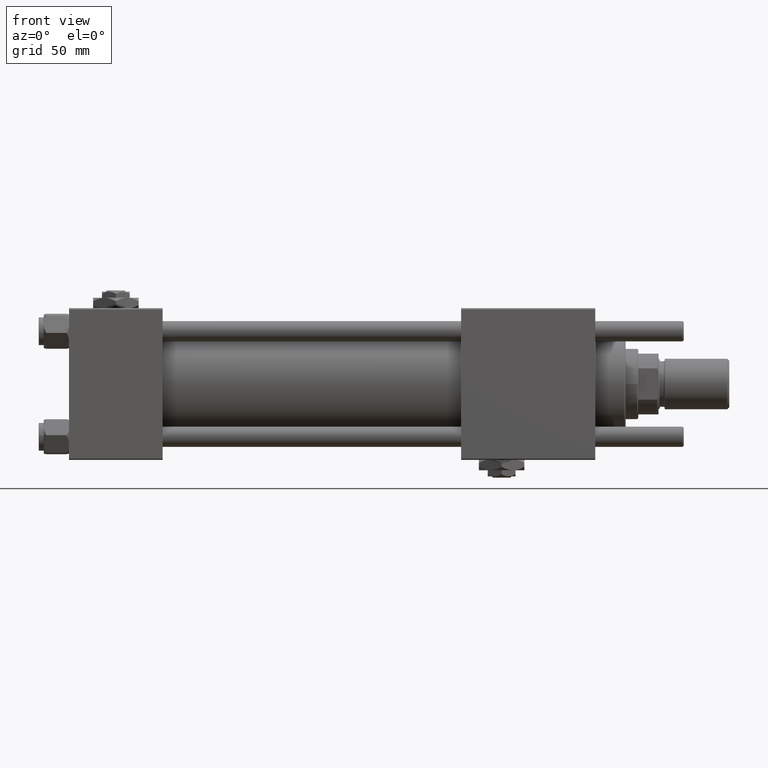
[diagram: clean part render]
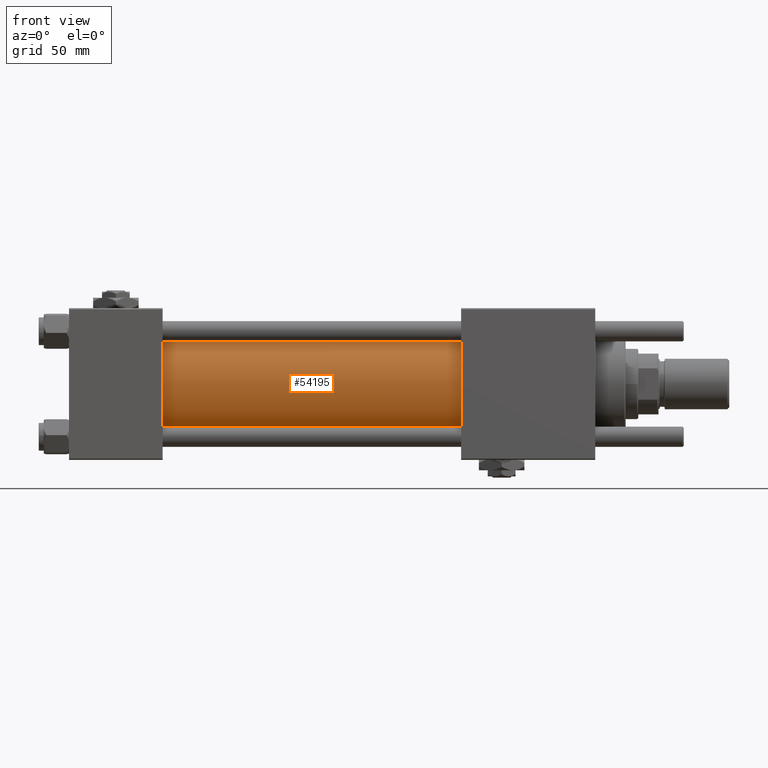
[diagram: same view with one face highlighted and labeled with its STEP entity id]
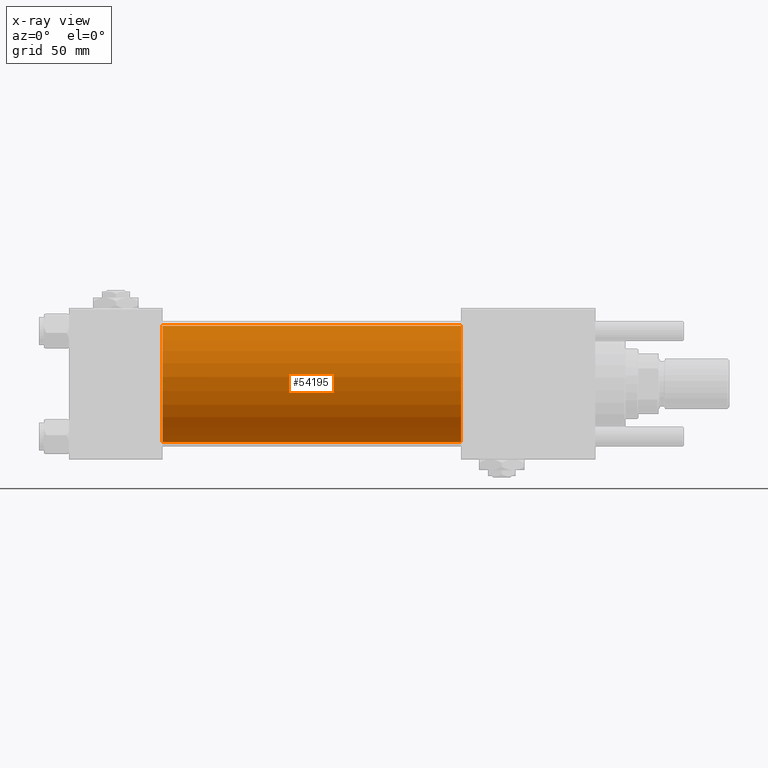
[diagram: x-ray of the same camera — body ghosted, the highlighted face saturated]
A machine part, front view. The second image highlights one B-rep face of the part: STEP entity #54195.
The next image is the same camera in x-ray: the body ghosted, the highlighted face saturated — about 0% of this face is hidden behind the body in this view.
In plain terms, the highlighted cylindrical surface (partial cylindrical patch) has radius 23 mm, axis along (-1, -0, -0).
Its self-contained STEP definition (entity closure, byte-faithful):
#7963 = DIRECTION ( 'NONE',  ( 0.000000000000000000, 0.000000000000000000, 1.000000000000000000 ) ) ;
#11110 = DIRECTION ( 'NONE',  ( 1.000000000000000000, -0.000000000000000000, 0.000000000000000000 ) ) ;
#11806 = CARTESIAN_POINT ( 'NONE',  ( 155.0000000000000000, -2.602085213965210642E-15, 23.00000000000000000 ) ) ;
#13467 = AXIS2_PLACEMENT_3D ( 'NONE', #34814, #11110, #51908 ) ;
#14304 = DIRECTION ( 'NONE',  ( 1.000000000000000000, 0.000000000000000000, 0.000000000000000000 ) ) ;
#14639 = LINE ( 'NONE', #28741, #19984 ) ;
#14939 = VECTOR ( 'NONE', #53654, 1000.000000000000000 ) ;
#17128 = VERTEX_POINT ( 'NONE', #42719 ) ;
#19984 = VECTOR ( 'NONE', #42530, 1000.000000000000000 ) ;
#20609 = ORIENTED_EDGE ( 'NONE', *, *, #37306, .T. ) ;
#21171 = CARTESIAN_POINT ( 'NONE',  ( 155.0000000000000000, -2.602085213965210642E-15, 0.000000000000000000 ) ) ;
#24827 = AXIS2_PLACEMENT_3D ( 'NONE', #21171, #31646, #7963 ) ;
#27852 = CIRCLE ( 'NONE', #13467, 23.00000000000000000 ) ;
#28648 = EDGE_CURVE ( 'NONE', #40623, #56859, #54256, .T. ) ;
#28741 = CARTESIAN_POINT ( 'NONE',  ( 155.0000000000000000, 2.146024240737016609E-16, -23.00000000000000000 ) ) ;
#29243 = EDGE_CURVE ( 'NONE', #40623, #30218, #30268, .T. ) ;
#30218 = VERTEX_POINT ( 'NONE', #53738 ) ;
#30268 = LINE ( 'NONE', #44949, #14939 ) ;
#30472 = FACE_OUTER_BOUND ( 'NONE', #32643, .T. ) ;
#31646 = DIRECTION ( 'NONE',  ( -1.000000000000000000, -0.000000000000000000, -0.000000000000000000 ) ) ;
#32519 = CARTESIAN_POINT ( 'NONE',  ( 155.0000000000000000, 2.146024240737016609E-16, -23.00000000000000000 ) ) ;
#32643 = EDGE_LOOP ( 'NONE', ( #36942, #37746, #35644, #20609 ) ) ;
#34814 = CARTESIAN_POINT ( 'NONE',  ( 37.00000000000000711, -2.602085213965210642E-15, 0.000000000000000000 ) ) ;
#35644 = ORIENTED_EDGE ( 'NONE', *, *, #29243, .T. ) ;
#36942 = ORIENTED_EDGE ( 'NONE', *, *, #53347, .F. ) ;
#37109 = CARTESIAN_POINT ( 'NONE',  ( 155.0000000000000000, -2.602085213965210642E-15, 0.000000000000000000 ) ) ;
#37306 = EDGE_CURVE ( 'NONE', #30218, #17128, #27852, .T. ) ;
#37746 = ORIENTED_EDGE ( 'NONE', *, *, #28648, .F. ) ;
#40072 = CYLINDRICAL_SURFACE ( 'NONE', #24827, 23.00000000000000000 ) ;
#40623 = VERTEX_POINT ( 'NONE', #11806 ) ;
#40736 = DIRECTION ( 'NONE',  ( 0.000000000000000000, 0.000000000000000000, -1.000000000000000000 ) ) ;
#42530 = DIRECTION ( 'NONE',  ( -1.000000000000000000, -0.000000000000000000, -0.000000000000000000 ) ) ;
#42719 = CARTESIAN_POINT ( 'NONE',  ( 37.00000000000000711, 2.146024240737016609E-16, -23.00000000000000000 ) ) ;
#44949 = CARTESIAN_POINT ( 'NONE',  ( 155.0000000000000000, -2.602085213965210642E-15, 23.00000000000000000 ) ) ;
#51332 = AXIS2_PLACEMENT_3D ( 'NONE', #37109, #14304, #40736 ) ;
#51908 = DIRECTION ( 'NONE',  ( 0.000000000000000000, 0.000000000000000000, 1.000000000000000000 ) ) ;
#53347 = EDGE_CURVE ( 'NONE', #56859, #17128, #14639, .T. ) ;
#53654 = DIRECTION ( 'NONE',  ( -1.000000000000000000, -0.000000000000000000, -0.000000000000000000 ) ) ;
#53738 = CARTESIAN_POINT ( 'NONE',  ( 37.00000000000000711, -2.602085213965210642E-15, 23.00000000000000000 ) ) ;
#54195 = ADVANCED_FACE ( 'NONE', ( #30472 ), #40072, .T. ) ;
#54256 = CIRCLE ( 'NONE', #51332, 23.00000000000000000 ) ;
#56859 = VERTEX_POINT ( 'NONE', #32519 ) ;